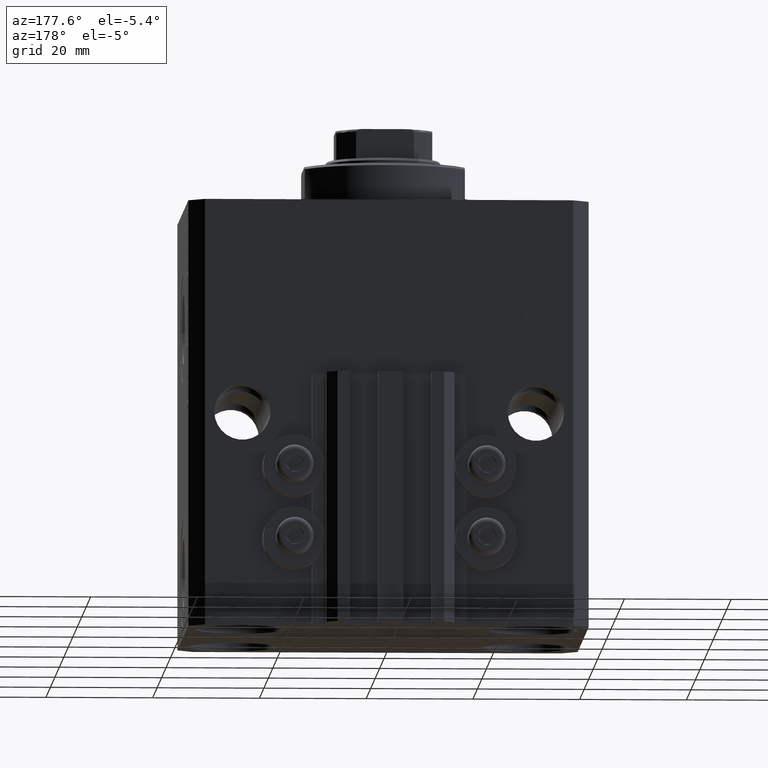
[diagram: clean part render]
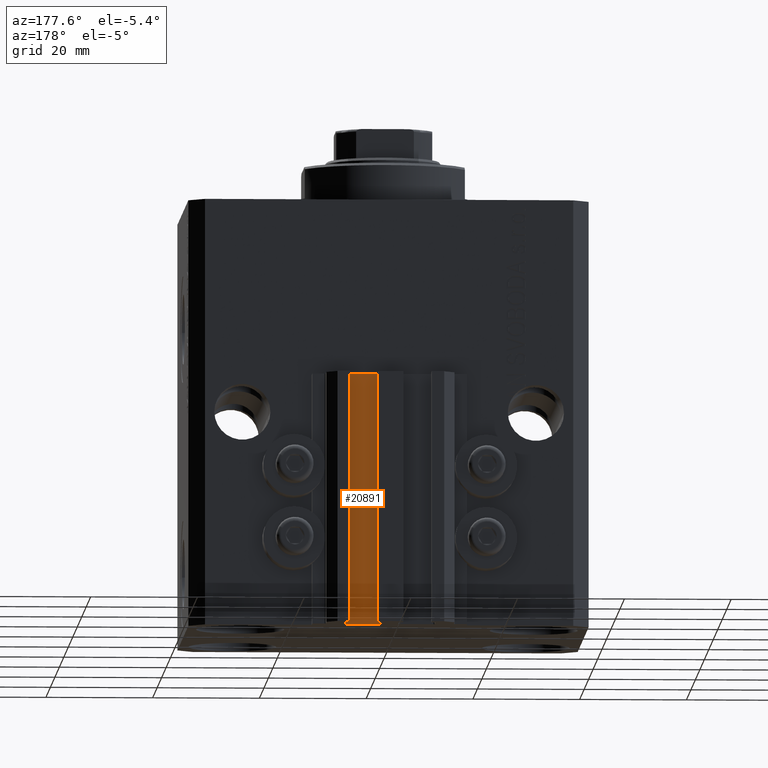
[diagram: same view with one face highlighted and labeled with its STEP entity id]
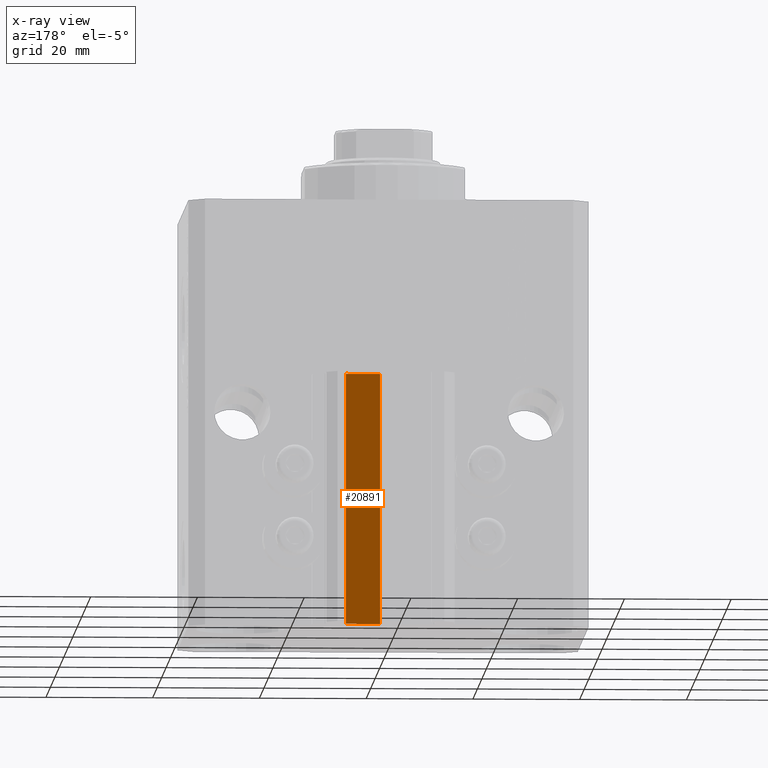
[diagram: x-ray of the same camera — body ghosted, the highlighted face saturated]
A machine part, auxiliary view. The second image highlights one B-rep face of the part: STEP entity #20891.
The next image is the same camera in x-ray: the body ghosted, the highlighted face saturated — about 0% of this face is hidden behind the body in this view.
In plain terms, the highlighted planar face has unit normal (-0, 1, 0).
Its self-contained STEP definition (entity closure, byte-faithful):
#396 = CARTESIAN_POINT ( 'NONE',  ( 1.800000000000000933, 29.50000000000000000, -80.00000000000000000 ) ) ;
#637 = EDGE_CURVE ( 'NONE', #37844, #43853, #22425, .T. ) ;
#839 = CARTESIAN_POINT ( 'NONE',  ( 8.199999999999999289, 29.50000000000000711, -80.00000000000000000 ) ) ;
#1959 = LINE ( 'NONE', #2186, #16179 ) ;
#2186 = CARTESIAN_POINT ( 'NONE',  ( 8.199999999999999289, 29.50000000000000711, -80.00000000000000000 ) ) ;
#10349 = LINE ( 'NONE', #396, #32316 ) ;
#10864 = AXIS2_PLACEMENT_3D ( 'NONE', #34139, #15901, #45012 ) ;
#12966 = CARTESIAN_POINT ( 'NONE',  ( 1.800000000000000933, 29.50000000000000000, -80.00000000000000000 ) ) ;
#14457 = CARTESIAN_POINT ( 'NONE',  ( 8.199999999999999289, 29.50000000000000711, -33.00000000000000000 ) ) ;
#15901 = DIRECTION ( 'NONE',  ( -1.084202172485504828E-15, 1.000000000000000000, 0.000000000000000000 ) ) ;
#16179 = VECTOR ( 'NONE', #27566, 1000.000000000000000 ) ;
#18849 = DIRECTION ( 'NONE',  ( 0.000000000000000000, 0.000000000000000000, 1.000000000000000000 ) ) ;
#19697 = PLANE ( 'NONE',  #10864 ) ;
#19721 = EDGE_CURVE ( 'NONE', #37844, #37774, #1959, .T. ) ;
#20567 = CARTESIAN_POINT ( 'NONE',  ( 8.199999999999999289, 29.50000000000000711, -80.00000000000000000 ) ) ;
#20891 = ADVANCED_FACE ( 'NONE', ( #30602 ), #19697, .T. ) ;
#22425 = LINE ( 'NONE', #839, #46779 ) ;
#22951 = ORIENTED_EDGE ( 'NONE', *, *, #637, .F. ) ;
#24231 = ORIENTED_EDGE ( 'NONE', *, *, #19721, .T. ) ;
#25046 = VECTOR ( 'NONE', #35403, 1000.000000000000000 ) ;
#27566 = DIRECTION ( 'NONE',  ( -1.000000000000000000, -1.084202172485504828E-15, 0.000000000000000000 ) ) ;
#29917 = ORIENTED_EDGE ( 'NONE', *, *, #32986, .T. ) ;
#30601 = VERTEX_POINT ( 'NONE', #37942 ) ;
#30602 = FACE_OUTER_BOUND ( 'NONE', #37997, .T. ) ;
#32316 = VECTOR ( 'NONE', #46828, 1000.000000000000000 ) ;
#32986 = EDGE_CURVE ( 'NONE', #37774, #30601, #10349, .T. ) ;
#34139 = CARTESIAN_POINT ( 'NONE',  ( 8.199999999999999289, 29.50000000000000711, -80.00000000000000000 ) ) ;
#35403 = DIRECTION ( 'NONE',  ( -1.000000000000000000, -1.084202172485504828E-15, 0.000000000000000000 ) ) ;
#37774 = VERTEX_POINT ( 'NONE', #12966 ) ;
#37844 = VERTEX_POINT ( 'NONE', #20567 ) ;
#37942 = CARTESIAN_POINT ( 'NONE',  ( 1.800000000000000933, 29.50000000000000000, -33.00000000000000000 ) ) ;
#37997 = EDGE_LOOP ( 'NONE', ( #42454, #22951, #24231, #29917 ) ) ;
#42454 = ORIENTED_EDGE ( 'NONE', *, *, #45470, .F. ) ;
#42730 = LINE ( 'NONE', #46504, #25046 ) ;
#43853 = VERTEX_POINT ( 'NONE', #14457 ) ;
#45012 = DIRECTION ( 'NONE',  ( -1.000000000000000000, -1.084202172485504828E-15, 0.000000000000000000 ) ) ;
#45470 = EDGE_CURVE ( 'NONE', #43853, #30601, #42730, .T. ) ;
#46504 = CARTESIAN_POINT ( 'NONE',  ( 8.199999999999999289, 29.50000000000000711, -33.00000000000000000 ) ) ;
#46779 = VECTOR ( 'NONE', #18849, 1000.000000000000000 ) ;
#46828 = DIRECTION ( 'NONE',  ( 0.000000000000000000, 0.000000000000000000, 1.000000000000000000 ) ) ;